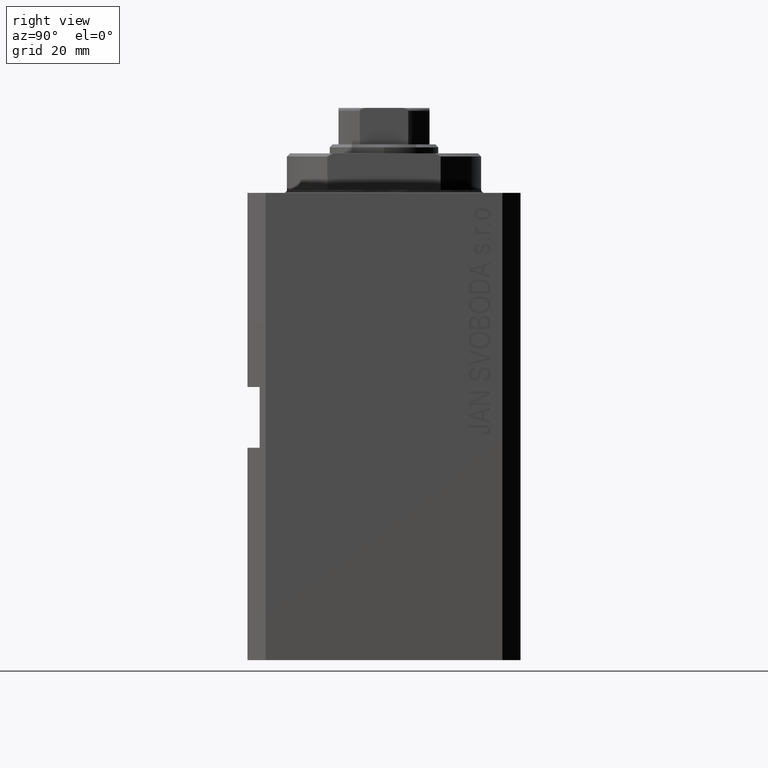
[diagram: clean part render]
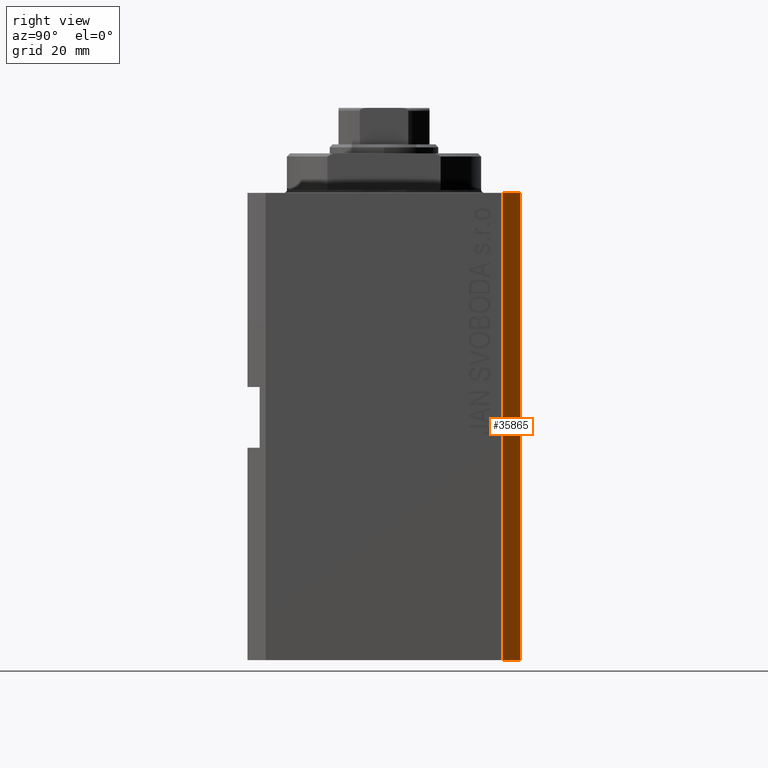
[diagram: same view with one face highlighted and labeled with its STEP entity id]
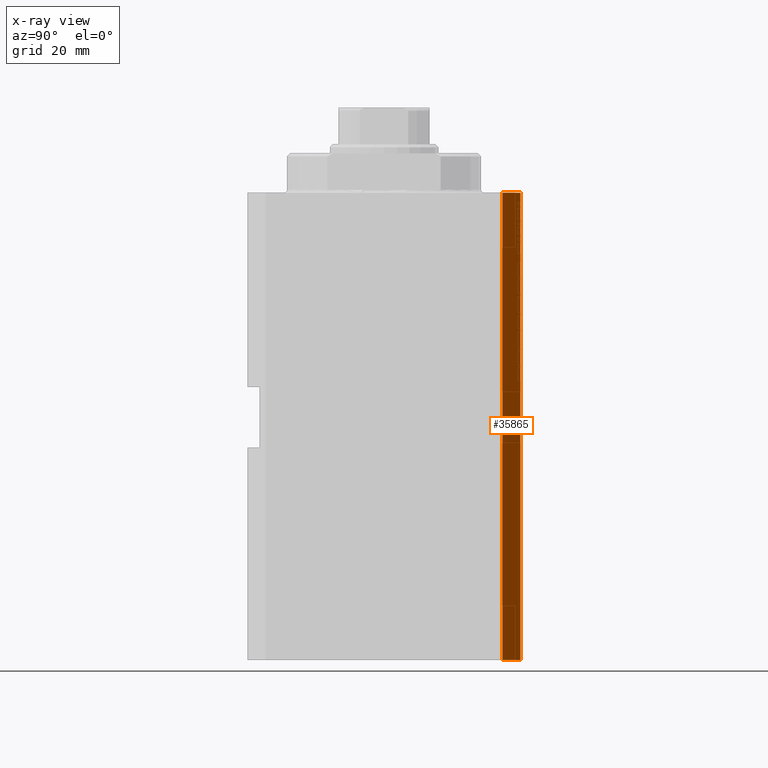
[diagram: x-ray of the same camera — body ghosted, the highlighted face saturated]
A machine part, right view. The second image highlights one B-rep face of the part: STEP entity #35865.
The next image is the same camera in x-ray: the body ghosted, the highlighted face saturated — about 0% of this face is hidden behind the body in this view.
In plain terms, the highlighted planar face has unit normal (0.7071, 0.7071, 0).
Its self-contained STEP definition (entity closure, byte-faithful):
#700 = VERTEX_POINT ( 'NONE', #14378 ) ;
#3075 = DIRECTION ( 'NONE',  ( 0.000000000000000000, 0.000000000000000000, 1.000000000000000000 ) ) ;
#4471 = ORIENTED_EDGE ( 'NONE', *, *, #24040, .T. ) ;
#5201 = EDGE_CURVE ( 'NONE', #14516, #700, #16573, .T. ) ;
#5301 = CARTESIAN_POINT ( 'NONE',  ( 29.49999999999707967, 22.49999999999951328, 0.000000000000000000 ) ) ;
#5768 = DIRECTION ( 'NONE',  ( -0.7071067811865352493, 0.7071067811865597852, 0.000000000000000000 ) ) ;
#6364 = VECTOR ( 'NONE', #27121, 1000.000000000000000 ) ;
#6459 = PLANE ( 'NONE',  #13250 ) ;
#6695 = LINE ( 'NONE', #44192, #6364 ) ;
#7500 = EDGE_LOOP ( 'NONE', ( #43067, #22762, #43097, #4471 ) ) ;
#8960 = EDGE_CURVE ( 'NONE', #14516, #41838, #36116, .T. ) ;
#9627 = CARTESIAN_POINT ( 'NONE',  ( 32.49999999999702993, 19.49999999999945999, -77.00000000000000000 ) ) ;
#9836 = FACE_OUTER_BOUND ( 'NONE', #7500, .T. ) ;
#10816 = CARTESIAN_POINT ( 'NONE',  ( 29.49999999999707967, 22.49999999999951328, -77.00000000000000000 ) ) ;
#13250 = AXIS2_PLACEMENT_3D ( 'NONE', #9627, #33643, #16572 ) ;
#14378 = CARTESIAN_POINT ( 'NONE',  ( 32.49999999999702993, 19.49999999999945999, 0.000000000000000000 ) ) ;
#14516 = VERTEX_POINT ( 'NONE', #16857 ) ;
#14900 = EDGE_CURVE ( 'NONE', #700, #37820, #6695, .T. ) ;
#16572 = DIRECTION ( 'NONE',  ( -0.7071067811865351382, 0.7071067811865598962, 0.000000000000000000 ) ) ;
#16573 = LINE ( 'NONE', #34080, #34904 ) ;
#16857 = CARTESIAN_POINT ( 'NONE',  ( 32.49999999999702993, 19.49999999999945999, -77.00000000000000000 ) ) ;
#19818 = CARTESIAN_POINT ( 'NONE',  ( 29.49999999999707967, 22.49999999999951328, -77.00000000000000000 ) ) ;
#20941 = VECTOR ( 'NONE', #43399, 1000.000000000000000 ) ;
#22762 = ORIENTED_EDGE ( 'NONE', *, *, #5201, .F. ) ;
#23184 = LINE ( 'NONE', #19818, #20941 ) ;
#24040 = EDGE_CURVE ( 'NONE', #41838, #37820, #23184, .T. ) ;
#27121 = DIRECTION ( 'NONE',  ( -0.7071067811865352493, 0.7071067811865597852, 0.000000000000000000 ) ) ;
#32723 = CARTESIAN_POINT ( 'NONE',  ( 32.49999999999702993, 19.49999999999945999, -77.00000000000000000 ) ) ;
#32836 = VECTOR ( 'NONE', #5768, 1000.000000000000000 ) ;
#33643 = DIRECTION ( 'NONE',  ( 0.7071067811865598962, 0.7071067811865351382, -0.000000000000000000 ) ) ;
#34080 = CARTESIAN_POINT ( 'NONE',  ( 32.49999999999702993, 19.49999999999945999, -77.00000000000000000 ) ) ;
#34904 = VECTOR ( 'NONE', #3075, 1000.000000000000000 ) ;
#35865 = ADVANCED_FACE ( 'NONE', ( #9836 ), #6459, .T. ) ;
#36116 = LINE ( 'NONE', #32723, #32836 ) ;
#37820 = VERTEX_POINT ( 'NONE', #5301 ) ;
#41838 = VERTEX_POINT ( 'NONE', #10816 ) ;
#43067 = ORIENTED_EDGE ( 'NONE', *, *, #14900, .F. ) ;
#43097 = ORIENTED_EDGE ( 'NONE', *, *, #8960, .T. ) ;
#43399 = DIRECTION ( 'NONE',  ( 0.000000000000000000, 0.000000000000000000, 1.000000000000000000 ) ) ;
#44192 = CARTESIAN_POINT ( 'NONE',  ( 32.49999999999702993, 19.49999999999945999, 0.000000000000000000 ) ) ;